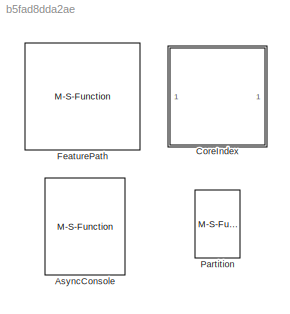
MODEL slx_b5fad8dda2ae
KIND library
CONFIG AbsTol = auto
CONFIG EnableMultiTasking = off
CONFIG FixedStep = auto
CONFIG MaxStep = auto
CONFIG MinStep = auto
CONFIG RelTol = 1e-3
CONFIG SampleTimeConstraint = Unconstrained
CONFIG SolverName = VariableStepAuto
CONFIG StartTime = 0.0
CONFIG StopTime = 10.0
BLOCK [M-S-Function] AsyncConsole
  FunctionName = AsyncSIL_SFunc
  Parameters = AddSimEventList,RtcRequestListHash,AsyncWakeMsec
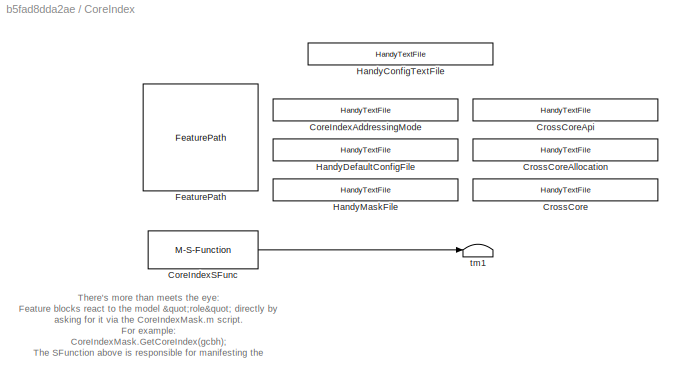
BLOCK [SubSystem] CoreIndex
  MoveFcn = CoreIndexMask.CB_TriggerInit(gcbh);
BLOCK [Reference] CoreIndex/CoreIndexAddressingMode  REF=HandyTextFile/HandyTextFile
  SourceBlock = HandyTextFile/HandyTextFile
  SourceProductName = Bose Talaria
  SourceType = Talaria Handy Text File
BLOCK [M-S-Function] CoreIndex/CoreIndexSFunc
  FunctionName = CoreIndexSFunc
  Parameters = BasePeriod
BLOCK [Reference] CoreIndex/CrossCore  REF=HandyTextFile/HandyTextFile
  SourceBlock = HandyTextFile/HandyTextFile
  SourceProductName = Bose Talaria
  SourceType = Talaria Handy Text File
BLOCK [Reference] CoreIndex/CrossCoreAllocation  REF=HandyTextFile/HandyTextFile
  SourceBlock = HandyTextFile/HandyTextFile
  SourceProductName = Bose Talaria
  SourceType = Talaria Handy Text File
BLOCK [Reference] CoreIndex/CrossCoreApi  REF=HandyTextFile/HandyTextFile
  SourceBlock = HandyTextFile/HandyTextFile
  SourceProductName = Bose Talaria
  SourceType = Talaria Handy Text File
BLOCK [Reference] CoreIndex/FeaturePath  REF=$bdroot/FeaturePath
  SourceBlock = $bdroot/FeaturePath
  SourceType = Talaria Feature Path
BLOCK [Reference] CoreIndex/HandyConfigTextFile  REF=HandyTextFile/HandyTextFile
  SourceBlock = HandyTextFile/HandyTextFile
  SourceProductName = Bose Talaria
  SourceType = Talaria Handy Text File
BLOCK [Reference] CoreIndex/HandyDefaultConfigFile  REF=HandyTextFile/HandyTextFile
  SourceBlock = HandyTextFile/HandyTextFile
  SourceProductName = Bose Talaria
  SourceType = Talaria Handy Text File
BLOCK [Reference] CoreIndex/HandyMaskFile  REF=HandyTextFile/HandyTextFile
  SourceBlock = HandyTextFile/HandyTextFile
  SourceProductName = Bose Talaria
  SourceType = Talaria Handy Text File
BLOCK [Terminator] CoreIndex/tm1
BLOCK [M-S-Function] FeaturePath
  FunctionName = FeaturePath_SFunc
  MoveFcn = FeaturePathMask.CB_TriggerInit(gcbh);
BLOCK [M-S-Function] Partition
  FunctionName = PartitionSFunc
  MoveFcn = PartitionMask.CB_TriggerInit(gcbh);
  Parameters = ok,partitionNumber,groupNumber,groupPath
ANNOTATION CoreIndex: There's more than meets the eye: Feature blocks react to the model "role" directly by asking for it via the CoreIndexMask.m script. For example: CoreIndexMask.GetCoreIndex(gcbh); The SFunction above is responsible for manifesting the systemwide base rate timing. Some partitioned models may not otherwise "know" about this rate.
LINE CoreIndex/CoreIndexSFunc:1 -> CoreIndex/tm1:1
